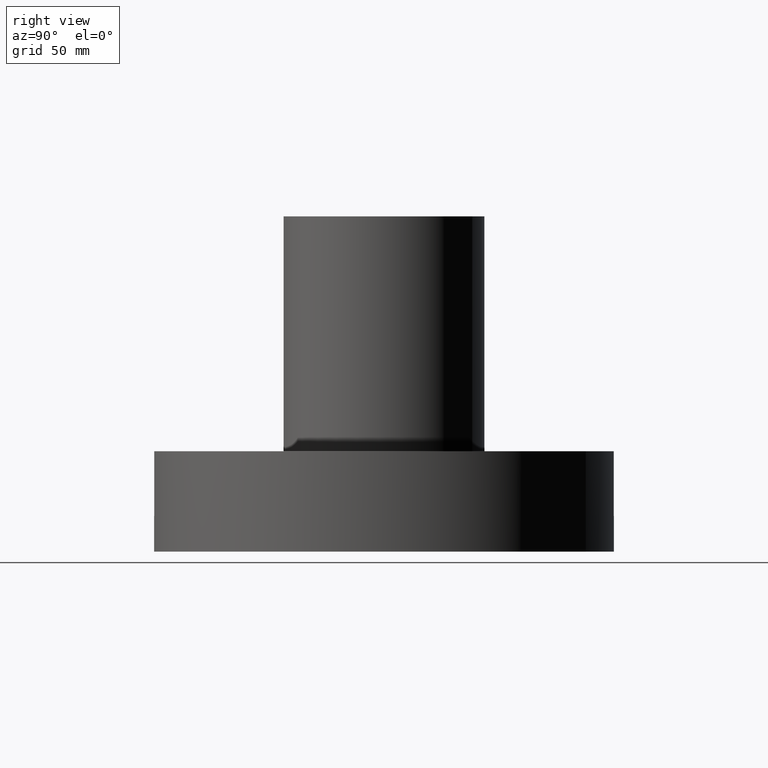
[diagram: clean part render]
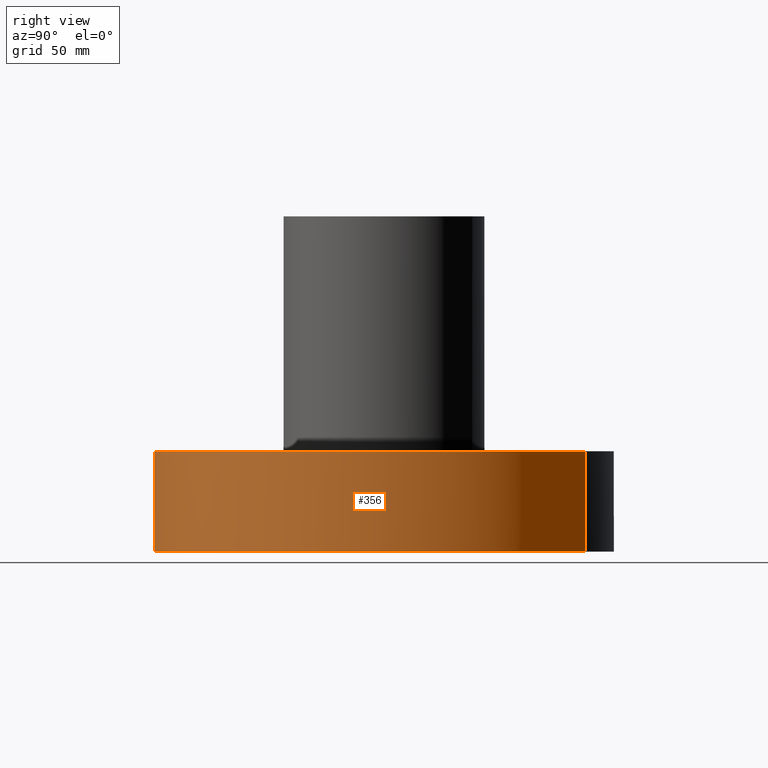
[diagram: same view with one face highlighted and labeled with its STEP entity id]
A machine part, right view. The second image highlights one B-rep face of the part: STEP entity #356.
In plain terms, the highlighted cylindrical surface (partial cylindrical patch) has radius 152.4 mm, axis along (0, 0, -1).
Its self-contained STEP definition (entity closure, byte-faithful):
#99=AXIS2_PLACEMENT_3D('Circle Axis2P3D',#97,#98,$) ;
#285=AXIS2_PLACEMENT_3D('Cylinder Axis2P3D',#282,#283,#284) ;
#331=AXIS2_PLACEMENT_3D('Circle Axis2P3D',#329,#330,$) ;
#338=AXIS2_PLACEMENT_3D('Circle Axis2P3D',#336,#337,$) ;
#345=AXIS2_PLACEMENT_3D('Circle Axis2P3D',#343,#344,$) ;
#97=CARTESIAN_POINT('Axis2P3D Location',(0.,0.,2.62000000001)) ;
#101=CARTESIAN_POINT('Vertex',(2.87655323164,5.26549537136,2.62000000001)) ;
#103=CARTESIAN_POINT('Vertex',(-2.87655323164,-5.26549537136,2.62000000001)) ;
#282=CARTESIAN_POINT('Axis2P3D Location',(0.,0.,4.25000000002)) ;
#293=CARTESIAN_POINT('Vertex',(2.87655323164,5.26549537136,1.1189649382E-015)) ;
#307=CARTESIAN_POINT('Vertex',(-2.87655323164,-5.26549537136,1.1189649382E-015)) ;
#310=CARTESIAN_POINT('Line Origine',(-2.87655323164,-5.26549537136,1.31000000001)) ;
#315=CARTESIAN_POINT('Line Origine',(2.87655323164,5.26549537136,1.31000000001)) ;
#329=CARTESIAN_POINT('Axis2P3D Location',(0.,0.,5.59482469102E-016)) ;
#333=CARTESIAN_POINT('Vertex',(1.6996616693E-015,-6.00000000002,0.)) ;
#336=CARTESIAN_POINT('Axis2P3D Location',(0.,0.,5.59482469102E-016)) ;
#340=CARTESIAN_POINT('Vertex',(6.00000000002,1.39870617276E-015,0.)) ;
#343=CARTESIAN_POINT('Axis2P3D Location',(0.,0.,5.59482469102E-016)) ;
#98=DIRECTION('Axis2P3D Direction',(0.,0.,-0.0393700787402)) ;
#283=DIRECTION('Axis2P3D Direction',(0.,0.,-0.0393700787402)) ;
#284=DIRECTION('Axis2P3D XDirection',(0.0188750212049,0.0345504945626,0.)) ;
#311=DIRECTION('Vector Direction',(0.,0.,-0.0393700787402)) ;
#316=DIRECTION('Vector Direction',(0.,0.,-0.0393700787402)) ;
#330=DIRECTION('Axis2P3D Direction',(0.,0.,-0.0393700787402)) ;
#337=DIRECTION('Axis2P3D Direction',(0.,0.,-0.0393700787402)) ;
#344=DIRECTION('Axis2P3D Direction',(0.,0.,-0.0393700787402)) ;
#312=VECTOR('Line Direction',#311,0.0393700787402) ;
#317=VECTOR('Line Direction',#316,0.0393700787402) ;
#349=ORIENTED_EDGE('',*,*,#335,.F.) ;
#350=ORIENTED_EDGE('',*,*,#342,.F.) ;
#351=ORIENTED_EDGE('',*,*,#347,.F.) ;
#352=ORIENTED_EDGE('',*,*,#319,.T.) ;
#353=ORIENTED_EDGE('',*,*,#105,.T.) ;
#354=ORIENTED_EDGE('',*,*,#314,.F.) ;
#356=ADVANCED_FACE('PartBody',(#355),#286,.T.) ;
#100=CIRCLE('generated circle',#99,6.00000000002) ;
#332=CIRCLE('generated circle',#331,6.00000000002) ;
#339=CIRCLE('generated circle',#338,6.00000000002) ;
#346=CIRCLE('generated circle',#345,6.00000000002) ;
#286=CYLINDRICAL_SURFACE('generated cylinder',#285,6.00000000002) ;
#105=EDGE_CURVE('',#102,#104,#100,.T.) ;
#314=EDGE_CURVE('',#308,#104,#313,.F.) ;
#319=EDGE_CURVE('',#294,#102,#318,.F.) ;
#335=EDGE_CURVE('',#334,#308,#332,.T.) ;
#342=EDGE_CURVE('',#341,#334,#339,.T.) ;
#347=EDGE_CURVE('',#294,#341,#346,.T.) ;
#348=EDGE_LOOP('',(#349,#350,#351,#352,#353,#354)) ;
#355=FACE_OUTER_BOUND('',#348,.T.) ;
#313=LINE('Line',#310,#312) ;
#318=LINE('Line',#315,#317) ;
#102=VERTEX_POINT('',#101) ;
#104=VERTEX_POINT('',#103) ;
#294=VERTEX_POINT('',#293) ;
#308=VERTEX_POINT('',#307) ;
#334=VERTEX_POINT('',#333) ;
#341=VERTEX_POINT('',#340) ;